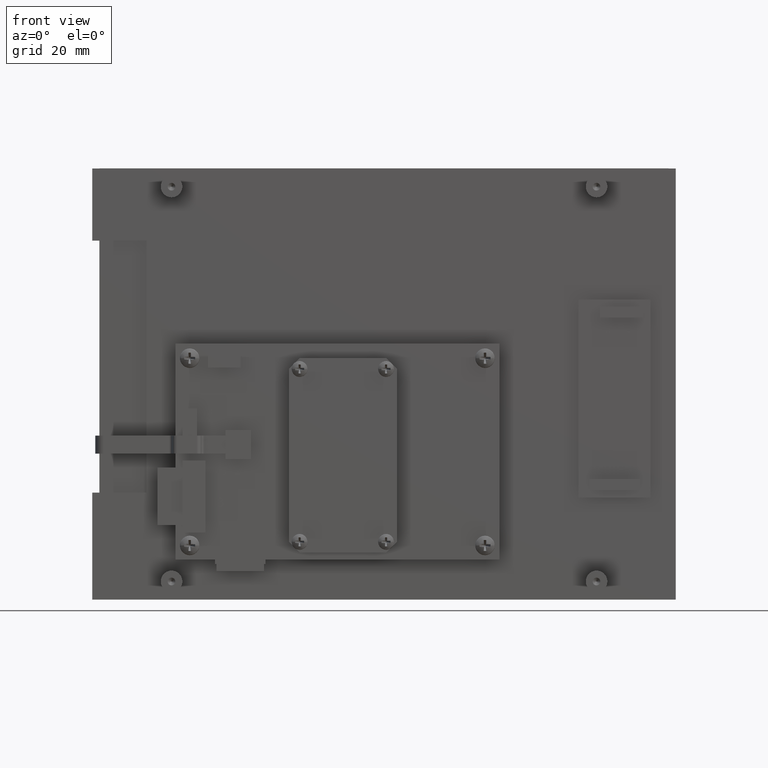
[diagram: clean part render]
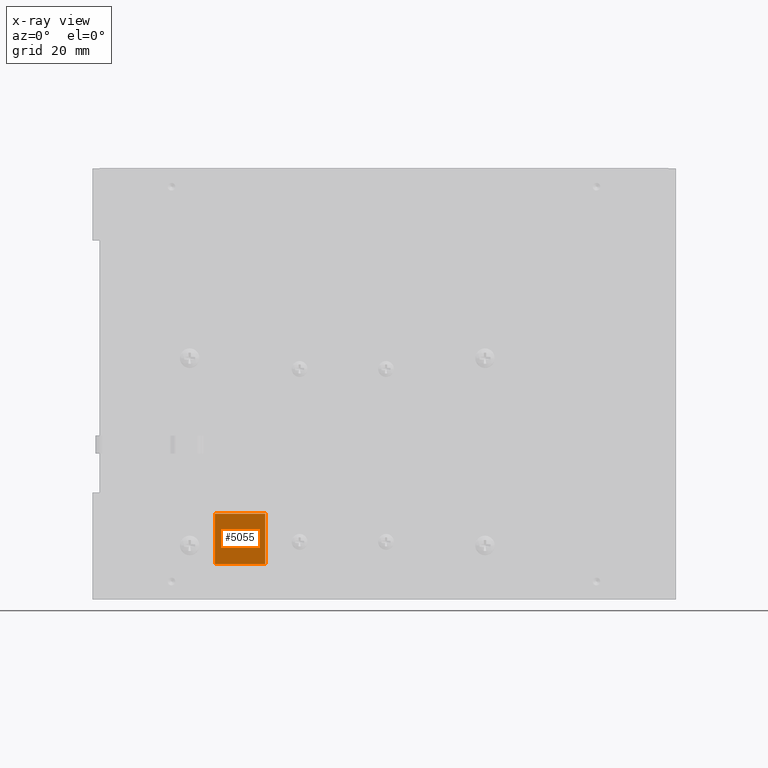
[diagram: x-ray — body ghosted, one internal face saturated and labeled with its STEP entity id]
A machine part, front view, then the same camera in x-ray: the body is ghosted and one INTERNAL B-rep face — a face not visible from any outside direction — is saturated and labeled: STEP entity #5055.
In plain terms, the highlighted planar face has unit normal (0, 1, -0).
Its self-contained STEP definition (entity closure, byte-faithful):
#435 = CARTESIAN_POINT ( 'NONE',  ( -1.700000000000000400, -0.1000000000000000100, 1.560000000000000300 ) ) ;
#441 = DIRECTION ( 'NONE',  ( -1.000000000000000000, 0.0000000000000000000, -3.902639990948948400E-016 ) ) ;
#494 = CARTESIAN_POINT ( 'NONE',  ( -1.700000000000000400, -0.1000000000000000100, 1.560000000000000300 ) ) ;
#495 = DIRECTION ( 'NONE',  ( 0.0000000000000000000, 0.0000000000000000000, -1.000000000000000000 ) ) ;
#498 = CARTESIAN_POINT ( 'NONE',  ( -1.700000000000000400, -0.1000000000000000100, 0.8599999999999998800 ) ) ;
#499 = DIRECTION ( 'NONE',  ( 1.000000000000000000, 0.0000000000000000000, -1.951319995474473700E-016 ) ) ;
#502 = CARTESIAN_POINT ( 'NONE',  ( -1.000000000000000200, -0.1000000000000000100, 1.560000000000000300 ) ) ;
#503 = DIRECTION ( 'NONE',  ( 0.0000000000000000000, -0.0000000000000000000, 1.000000000000000000 ) ) ;
#3825 = CARTESIAN_POINT ( 'NONE',  ( -1.000000000000000400, -0.1000000000000000100, 0.8599999999999998800 ) ) ;
#3847 = CARTESIAN_POINT ( 'NONE',  ( -1.700000000000000400, -0.1000000000000000100, 0.8599999999999998800 ) ) ;
#3858 = CARTESIAN_POINT ( 'NONE',  ( -1.000000000000000200, -0.1000000000000000100, 1.560000000000000300 ) ) ;
#3868 = CARTESIAN_POINT ( 'NONE',  ( -1.700000000000000400, -0.1000000000000000100, 1.560000000000000300 ) ) ;
#5055 = ADVANCED_FACE ( 'NONE', ( #8994 ), #10247, .T. ) ;
#5519 = ORIENTED_EDGE ( 'NONE', *, *, #6010, .T. ) ;
#5551 = ORIENTED_EDGE ( 'NONE', *, *, #6008, .T. ) ;
#5678 = ORIENTED_EDGE ( 'NONE', *, *, #5983, .T. ) ;
#5686 = ORIENTED_EDGE ( 'NONE', *, *, #6012, .T. ) ;
#5983 = EDGE_CURVE ( 'NONE', #13096, #13106, #9618, .T. ) ;
#6008 = EDGE_CURVE ( 'NONE', #13106, #13085, #9666, .T. ) ;
#6010 = EDGE_CURVE ( 'NONE', #13085, #13063, #9670, .T. ) ;
#6012 = EDGE_CURVE ( 'NONE', #13063, #13096, #9674, .T. ) ;
#8335 = AXIS2_PLACEMENT_3D ( 'NONE', #10240, #10249, #10250 ) ;
#8994 = FACE_OUTER_BOUND ( 'NONE', #13402, .T. ) ;
#9618 = LINE ( 'NONE', #435, #9623 ) ;
#9623 = VECTOR ( 'NONE', #441, 39.37007874015748100 ) ;
#9666 = LINE ( 'NONE', #494, #9669 ) ;
#9669 = VECTOR ( 'NONE', #495, 39.37007874015748100 ) ;
#9670 = LINE ( 'NONE', #498, #9673 ) ;
#9673 = VECTOR ( 'NONE', #499, 39.37007874015748100 ) ;
#9674 = LINE ( 'NONE', #502, #9677 ) ;
#9677 = VECTOR ( 'NONE', #503, 39.37007874015748100 ) ;
#10240 = CARTESIAN_POINT ( 'NONE',  ( 0.0000000000000000000, -0.1000000000000000100, 0.0000000000000000000 ) ) ;
#10247 = PLANE ( 'NONE',  #8335 ) ;
#10249 = DIRECTION ( 'NONE',  ( 0.0000000000000000000, -1.000000000000000000, 0.0000000000000000000 ) ) ;
#10250 = DIRECTION ( 'NONE',  ( 0.0000000000000000000, 0.0000000000000000000, -1.000000000000000000 ) ) ;
#13063 = VERTEX_POINT ( 'NONE', #3825 ) ;
#13085 = VERTEX_POINT ( 'NONE', #3847 ) ;
#13096 = VERTEX_POINT ( 'NONE', #3858 ) ;
#13106 = VERTEX_POINT ( 'NONE', #3868 ) ;
#13402 = EDGE_LOOP ( 'NONE', ( #5551, #5519, #5686, #5678 ) ) ;